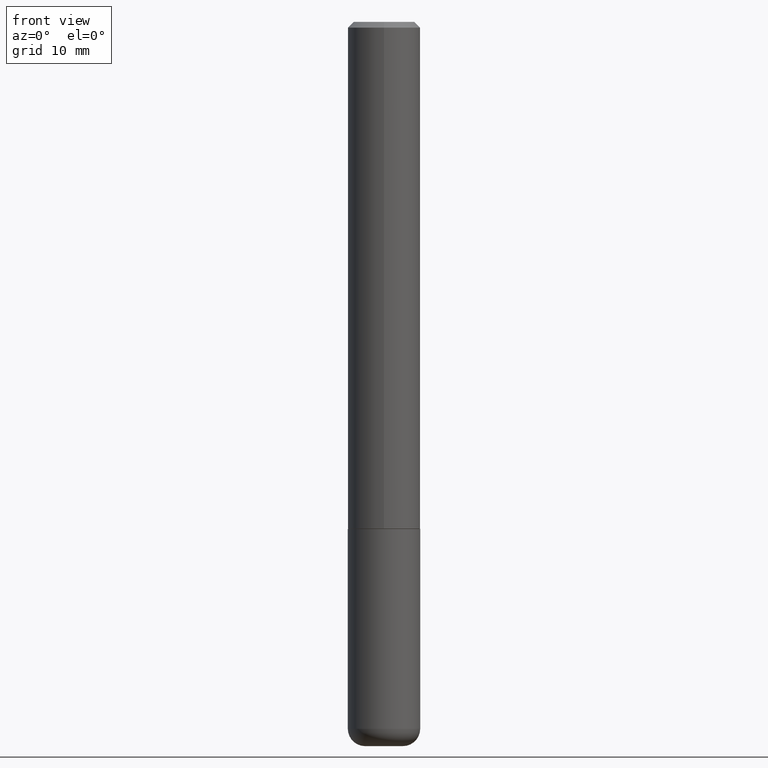
[diagram: clean part render]
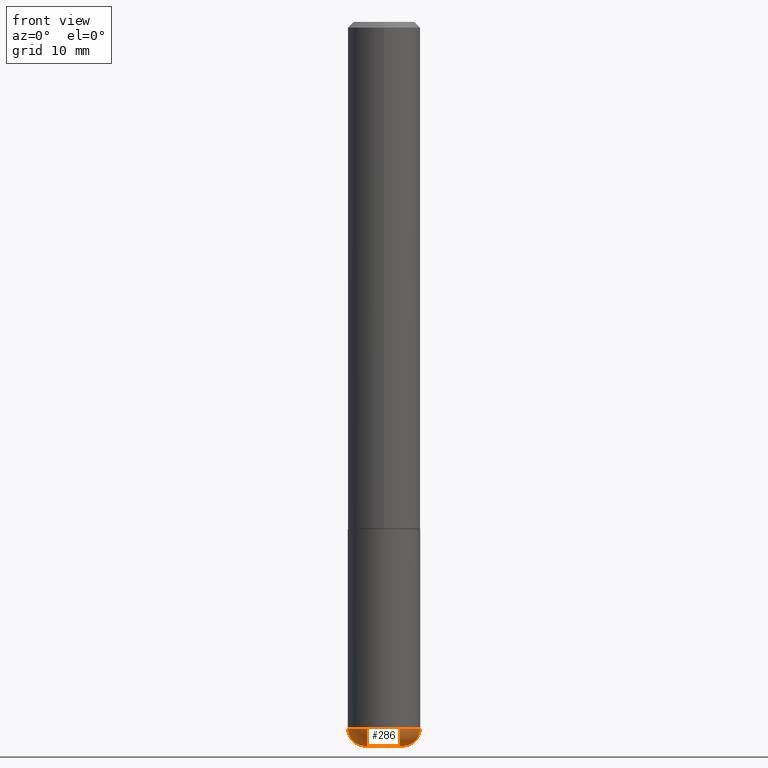
[diagram: same view with one face highlighted and labeled with its STEP entity id]
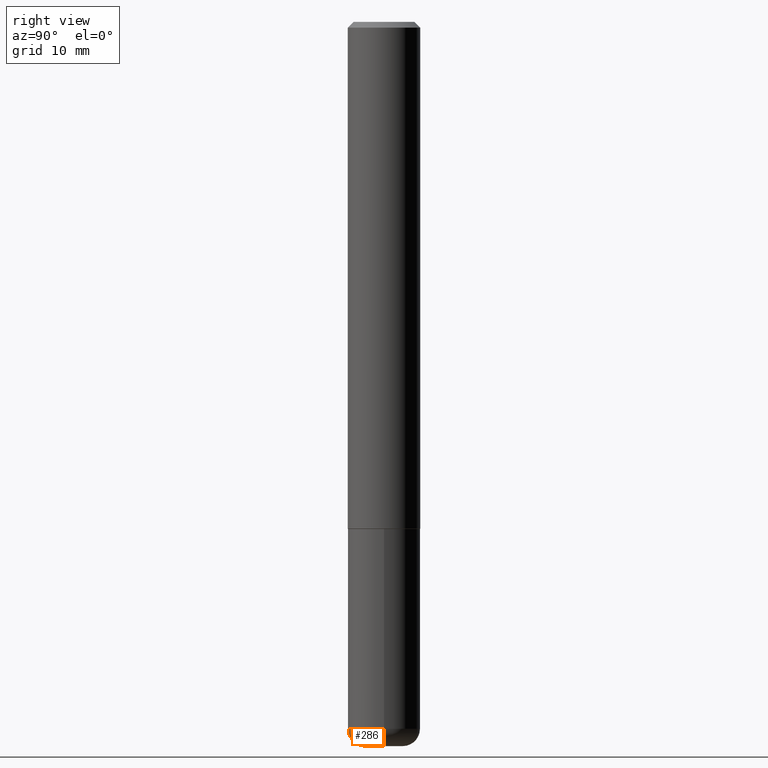
[diagram: same view with one face highlighted and labeled with its STEP entity id]
A machine part, front view. The second image highlights one B-rep face of the part: STEP entity #286.
A second angle (right view) of the same face is appended — the face is thin or edge-on in the first view.
In plain terms, the highlighted toroidal blend (fillet) surface has major radius 1.651 mm and minor (blend) radius 1.524 mm.
Its self-contained STEP definition (entity closure, byte-faithful):
#23 = CARTESIAN_POINT ( 'NONE',  ( 6.113672015462842613E-29, -8.728703347107864943E-15, -2.500000000000000000 ) ) ;
#32 = EDGE_CURVE ( 'NONE', #219, #47, #387, .T. ) ;
#39 = TOROIDAL_SURFACE ( 'NONE', #277, 0.06500000000000000222, 0.05999999999999995615 ) ;
#47 = VERTEX_POINT ( 'NONE', #57 ) ;
#48 = EDGE_CURVE ( 'NONE', #296, #106, #80, .T. ) ;
#49 = CARTESIAN_POINT ( 'NONE',  ( 0.06500000000000000222, -8.973107040826881753E-15, -2.440000000000000391 ) ) ;
#50 = DIRECTION ( 'NONE',  ( 1.000000000000000000, -6.982962677686262766E-15, 0.000000000000000000 ) ) ;
#57 = CARTESIAN_POINT ( 'NONE',  ( 0.1249999999999999861, -9.392084801488058387E-15, -2.440000000000000391 ) ) ;
#63 = EDGE_CURVE ( 'NONE', #296, #219, #418, .T. ) ;
#74 = AXIS2_PLACEMENT_3D ( 'NONE', #49, #269, #247 ) ;
#80 = CIRCLE ( 'NONE', #406, 0.06500000000000000222 ) ;
#105 = CIRCLE ( 'NONE', #74, 0.05999999999999996309 ) ;
#106 = VERTEX_POINT ( 'NONE', #411 ) ;
#159 = EDGE_LOOP ( 'NONE', ( #170, #276, #268, #285 ) ) ;
#170 = ORIENTED_EDGE ( 'NONE', *, *, #63, .F. ) ;
#190 = DIRECTION ( 'NONE',  ( -2.445468806185136597E-29, 3.491481338843145583E-15, 1.000000000000000000 ) ) ;
#193 = DIRECTION ( 'NONE',  ( 1.000000000000000000, -6.982962677686273810E-15, 0.000000000000000000 ) ) ;
#197 = EDGE_CURVE ( 'NONE', #106, #47, #105, .T. ) ;
#198 = DIRECTION ( 'NONE',  ( -2.445468806185136597E-29, 3.491481338843145583E-15, 1.000000000000000000 ) ) ;
#219 = VERTEX_POINT ( 'NONE', #244 ) ;
#222 = CARTESIAN_POINT ( 'NONE',  ( 5.966943887091733341E-29, -8.519214466777275048E-15, -2.440000000000000391 ) ) ;
#244 = CARTESIAN_POINT ( 'NONE',  ( -0.1249999999999999861, -7.631036047077151393E-15, -2.440000000000000391 ) ) ;
#247 = DIRECTION ( 'NONE',  ( 1.000000000000000000, -6.982962677686272233E-15, 0.000000000000000000 ) ) ;
#268 = ORIENTED_EDGE ( 'NONE', *, *, #197, .T. ) ;
#269 = DIRECTION ( 'NONE',  ( -6.982962677686266711E-15, -1.000000000000000000, 3.491481338843145583E-15 ) ) ;
#276 = ORIENTED_EDGE ( 'NONE', *, *, #48, .T. ) ;
#277 = AXIS2_PLACEMENT_3D ( 'NONE', #222, #190, #345 ) ;
#284 = CARTESIAN_POINT ( 'NONE',  ( -0.06500000000000000222, -7.948943307970475008E-15, -2.500000000000000000 ) ) ;
#285 = ORIENTED_EDGE ( 'NONE', *, *, #32, .F. ) ;
#286 = ADVANCED_FACE ( 'NONE', ( #317 ), #39, .T. ) ;
#296 = VERTEX_POINT ( 'NONE', #284 ) ;
#310 = DIRECTION ( 'NONE',  ( -1.000000000000000000, 7.105427357600995548E-15, 0.000000000000000000 ) ) ;
#313 = CARTESIAN_POINT ( 'NONE',  ( 5.966943887091733341E-29, -8.519214466777275048E-15, -2.440000000000000391 ) ) ;
#317 = FACE_OUTER_BOUND ( 'NONE', #159, .T. ) ;
#345 = DIRECTION ( 'NONE',  ( 1.000000000000000000, -6.982962677686265133E-15, 4.883557194083112340E-29 ) ) ;
#370 = AXIS2_PLACEMENT_3D ( 'NONE', #409, #377, #310 ) ;
#377 = DIRECTION ( 'NONE',  ( 7.105427357601001859E-15, 1.000000000000000000, -3.491481338843145583E-15 ) ) ;
#380 = AXIS2_PLACEMENT_3D ( 'NONE', #313, #198, #50 ) ;
#387 = CIRCLE ( 'NONE', #380, 0.1250000000000000000 ) ;
#406 = AXIS2_PLACEMENT_3D ( 'NONE', #23, #412, #193 ) ;
#409 = CARTESIAN_POINT ( 'NONE',  ( -0.06500000000000000222, -8.057361688533210306E-15, -2.440000000000000391 ) ) ;
#411 = CARTESIAN_POINT ( 'NONE',  ( 0.06500000000000000222, -9.182595921157471648E-15, -2.500000000000000000 ) ) ;
#412 = DIRECTION ( 'NONE',  ( -2.445468806185136597E-29, 3.491481338843145583E-15, 1.000000000000000000 ) ) ;
#418 = CIRCLE ( 'NONE', #370, 0.05999999999999996309 ) ;